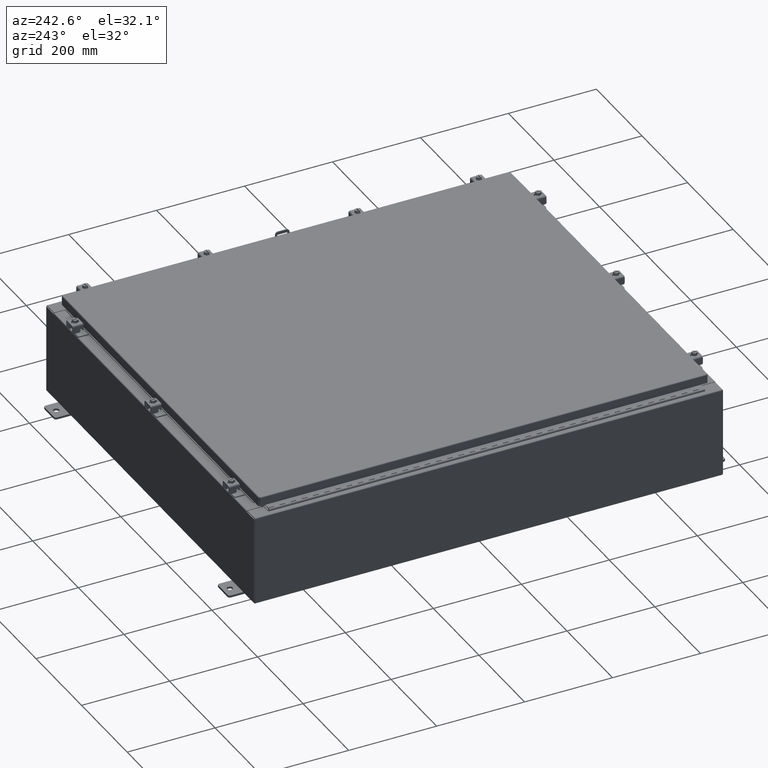
[diagram: clean part render]
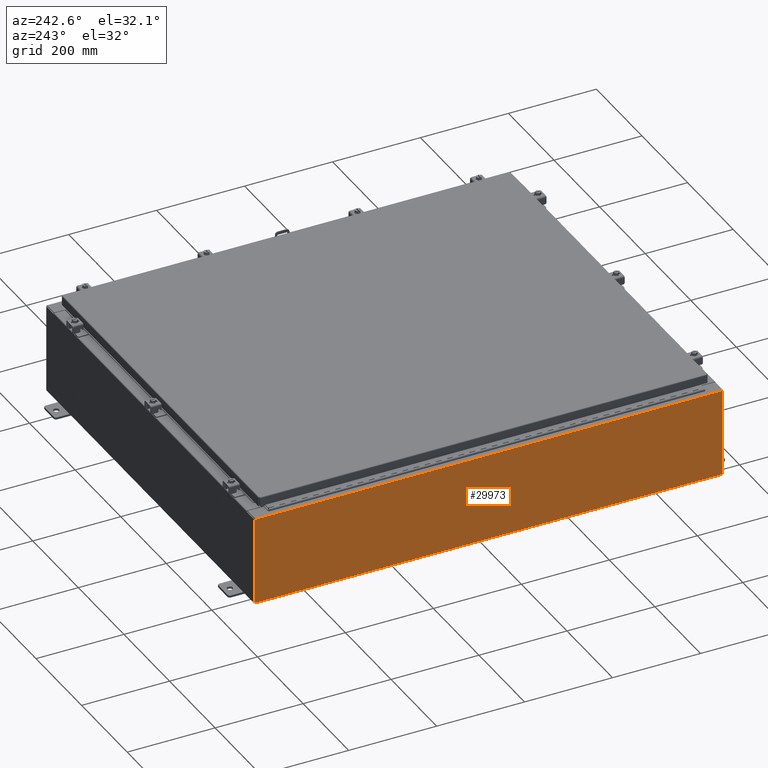
[diagram: same view with one face highlighted and labeled with its STEP entity id]
A machine part, auxiliary view. The second image highlights one B-rep face of the part: STEP entity #29973.
In plain terms, the highlighted planar face has unit normal (1, 0, 0).
Its self-contained STEP definition (entity closure, byte-faithful):
#548 = CARTESIAN_POINT ( 'NONE',  ( -17.99999999999999600, -20.92529999999999300, 0.01299999999999984700 ) ) ;
#755 = VERTEX_POINT ( 'NONE', #36919 ) ;
#1912 = VECTOR ( 'NONE', #41368, 39.37007874015748100 ) ;
#2481 = EDGE_CURVE ( 'NONE', #41814, #40946, #13227, .T. ) ;
#3222 = EDGE_CURVE ( 'NONE', #41814, #755, #25087, .T. ) ;
#3641 = CARTESIAN_POINT ( 'NONE',  ( -17.99999999999999600, 20.92529999999999600, 0.01299999999999984700 ) ) ;
#4174 = EDGE_CURVE ( 'NONE', #40946, #18181, #29807, .T. ) ;
#4406 = EDGE_CURVE ( 'NONE', #18181, #755, #10071, .T. ) ;
#4547 = DIRECTION ( 'NONE',  ( 0.0000000000000000000, 1.000000000000000000, 0.0000000000000000000 ) ) ;
#4849 = VECTOR ( 'NONE', #7454, 39.37007874015748100 ) ;
#6671 = CARTESIAN_POINT ( 'NONE',  ( -17.99999999999999600, 20.92529999999999600, -6.478858477053722900E-014 ) ) ;
#7454 = DIRECTION ( 'NONE',  ( -0.0000000000000000000, 1.000000000000000000, -0.0000000000000000000 ) ) ;
#10071 = LINE ( 'NONE', #6671, #49530 ) ;
#13227 = LINE ( 'NONE', #14696, #1912 ) ;
#14696 = CARTESIAN_POINT ( 'NONE',  ( -17.99999999999999600, -20.92530000000000400, -6.478858477053722900E-014 ) ) ;
#18181 = VERTEX_POINT ( 'NONE', #22229 ) ;
#18659 = EDGE_LOOP ( 'NONE', ( #46107, #24496, #48140, #35195 ) ) ;
#18879 = FACE_OUTER_BOUND ( 'NONE', #18659, .T. ) ;
#21782 = DIRECTION ( 'NONE',  ( 1.000000000000000000, 0.0000000000000000000, 3.584876173029202900E-015 ) ) ;
#22229 = CARTESIAN_POINT ( 'NONE',  ( -18.00000000000002500, 20.92529999999999600, 7.837599999999999200 ) ) ;
#24083 = AXIS2_PLACEMENT_3D ( 'NONE', #33136, #21782, #48552 ) ;
#24496 = ORIENTED_EDGE ( 'NONE', *, *, #4406, .T. ) ;
#25087 = LINE ( 'NONE', #3641, #4849 ) ;
#27331 = CARTESIAN_POINT ( 'NONE',  ( -18.00000000000002500, -20.92529999999999600, 7.837599999999999200 ) ) ;
#28575 = VECTOR ( 'NONE', #4547, 39.37007874015748100 ) ;
#29807 = LINE ( 'NONE', #27331, #28575 ) ;
#29973 = ADVANCED_FACE ( 'NONE', ( #18879 ), #44531, .F. ) ;
#33136 = CARTESIAN_POINT ( 'NONE',  ( -17.99999999999999600, 0.0000000000000000000, -6.478858477053722900E-014 ) ) ;
#33316 = DIRECTION ( 'NONE',  ( 3.584876173029202900E-015, 0.0000000000000000000, -1.000000000000000000 ) ) ;
#35195 = ORIENTED_EDGE ( 'NONE', *, *, #2481, .T. ) ;
#36919 = CARTESIAN_POINT ( 'NONE',  ( -17.99999999999999600, 20.92529999999999600, 0.01299999999999983600 ) ) ;
#40126 = CARTESIAN_POINT ( 'NONE',  ( -18.00000000000002500, -20.92529999999999300, 7.837599999999999200 ) ) ;
#40946 = VERTEX_POINT ( 'NONE', #40126 ) ;
#41368 = DIRECTION ( 'NONE',  ( -3.584876173029202900E-015, 0.0000000000000000000, 1.000000000000000000 ) ) ;
#41814 = VERTEX_POINT ( 'NONE', #548 ) ;
#44531 = PLANE ( 'NONE',  #24083 ) ;
#46107 = ORIENTED_EDGE ( 'NONE', *, *, #4174, .T. ) ;
#48140 = ORIENTED_EDGE ( 'NONE', *, *, #3222, .F. ) ;
#48552 = DIRECTION ( 'NONE',  ( 3.584876173029202900E-015, 0.0000000000000000000, -1.000000000000000000 ) ) ;
#49530 = VECTOR ( 'NONE', #33316, 39.37007874015748100 ) ;